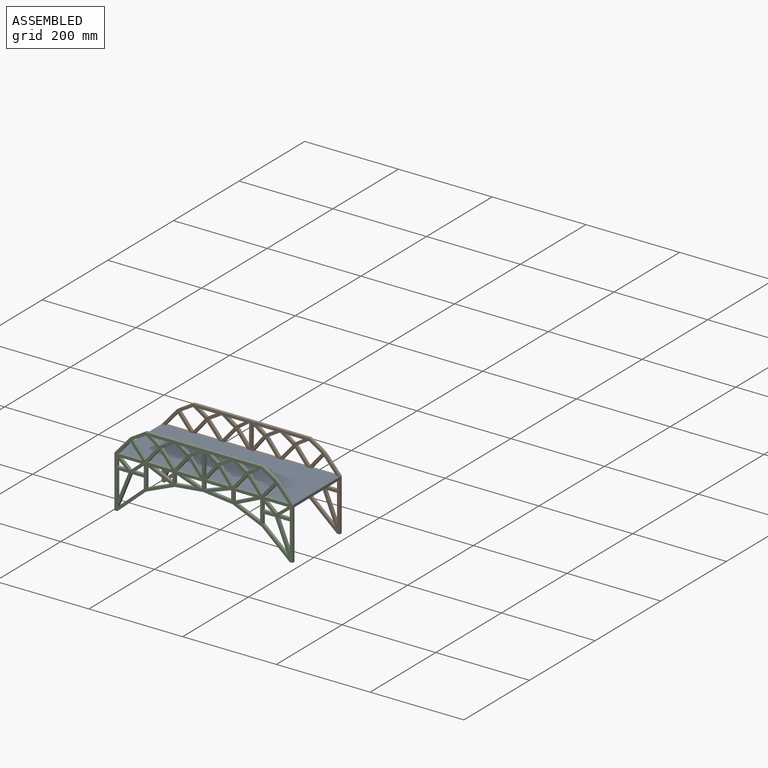
[diagram: assembled view]
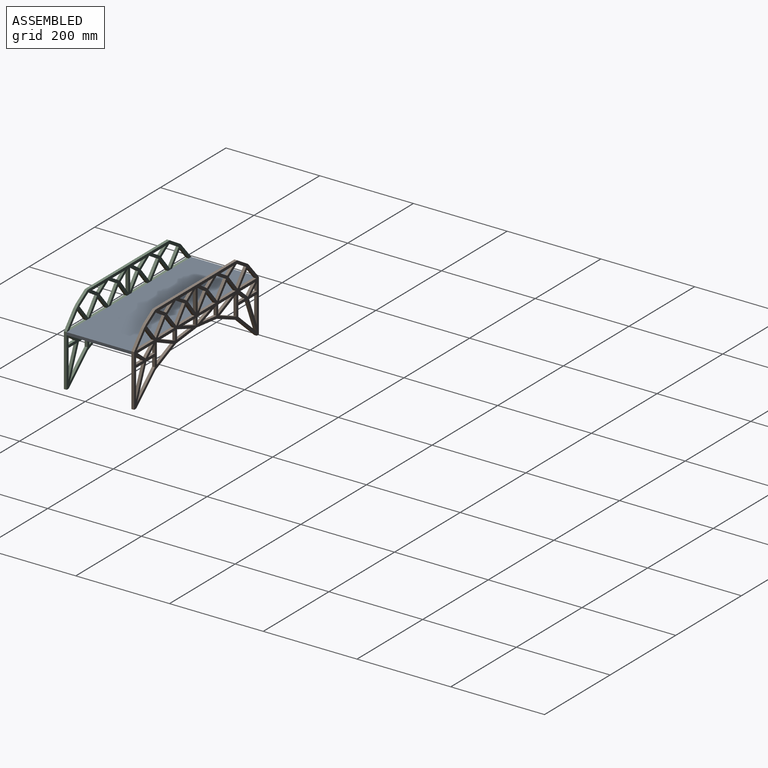
[diagram: assembled view, second angle]
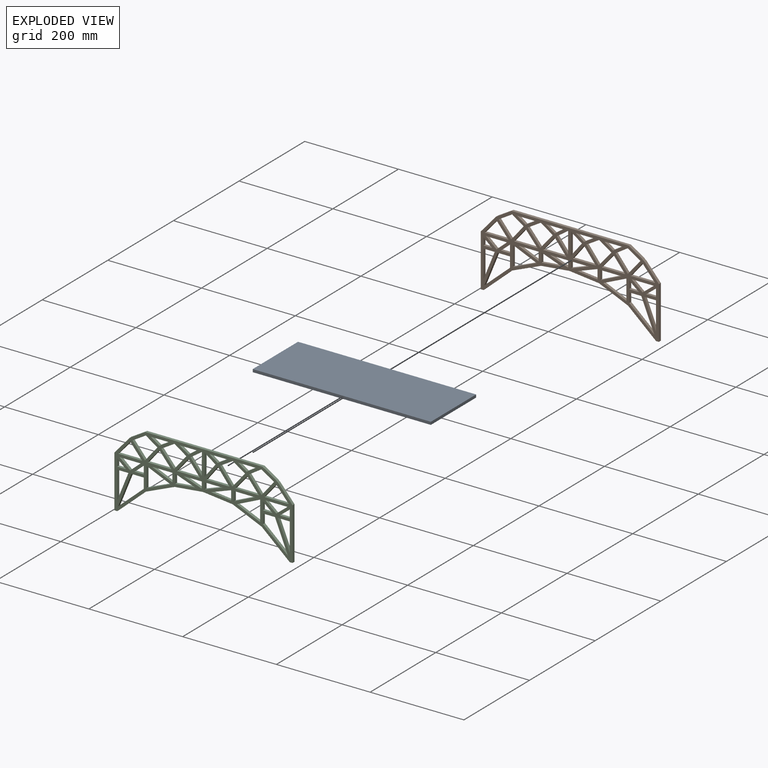
[diagram: exploded view]
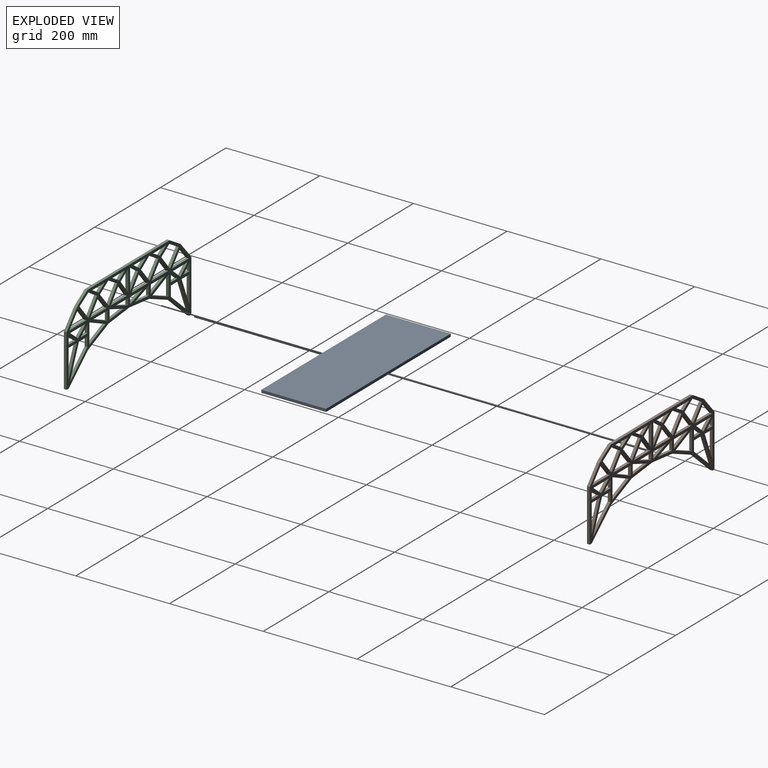
[diagram: exploded view, second angle]
ASSEMBLY  parts=3 mates=2
PART A: 6 faces, bbox 380x138x6 mm
  f0: plane 380x6mm, normal (0,1,0), area 2280mm2, adj f1,f3,f4,f5
  f1: plane 138x6mm, normal (-1,0,0), area 828mm2, adj f0,f2,f4,f5
  f2: plane 380x6mm, normal (0,-1,0), area 2280mm2, adj f1,f3,f4,f5
  f3: plane 138x6mm, normal (1,0,0), area 828mm2, adj f0,f2,f4,f5
  f4: plane 380x138mm, normal (0,0,1), area 52440mm2, adj f0,f1,f2,f3
  f5: plane 380x138mm, normal (0,0,-1), area 52440mm2, adj f0,f1,f2,f3
PART B: 129 faces, bbox 380x6x168.5 mm
  f0: plane 46.38x6mm, normal (-1,0,0.01), area 278.3mm2, adj f1,f126,f127,f128
  f1: plane 29.51x23.7mm, normal (0.78,0,0.63), area 227.1mm2, adj f0,f126,f127,f128
  f2: plane 24.64x16.47mm, normal (-0.56,0,-0.83), area 177.8mm2, adj f3,f92,f127,f128
  f3: plane 32.22x26.61mm, normal (-0.77,0,0.64), area 250.7mm2, adj f2,f4,f127,f128
  f4: plane 31.62x26.51mm, normal (0.77,0,0.64), area 247.6mm2, adj f3,f92,f127,f128
  f5: plane 6x1mm, normal (0,0,-1), area 6mm2, adj f6,f93,f127,f128
  f6: plane 26.64x16.65mm, normal (-0.53,0,-0.85), area 188.5mm2, adj f5,f7,f127,f128
  f7: plane 32.37x26.83mm, normal (-0.77,0,0.64), area 252.2mm2, adj f6,f8,f127,f128
  f8: plane 32.7x26.45mm, normal (0.78,0,0.63), area 252.3mm2, adj f7,f93,f127,f128
  f9: plane 38.4x6mm, normal (0,0,-1), area 230.4mm2, adj f10,f94,f127,f128
  f10: plane 19.59x12.47mm, normal (-0.54,0,0.84), area 139.3mm2, adj f9,f94,f127,f128
  f11: plane 26.05x17.27mm, normal (-0.55,0,-0.83), area 187.5mm2, adj f12,f95,f127,f128
  f12: plane 32.05x27.16mm, normal (-0.76,0,0.65), area 252.1mm2, adj f11,f13,f127,f128
  f13: plane 33.09x26.03mm, normal (0.79,0,0.62), area 252.6mm2, adj f12,f95,f127,f128
  f14: plane 38.11x6mm, normal (0,0,-1), area 228.7mm2, adj f15,f96,f127,f128
  f15: plane 20.74x12.41mm, normal (-0.51,0,0.86), area 145mm2, adj f14,f96,f127,f128
  f16: plane 23.2x16.57mm, normal (-0.58,0,-0.81), area 171.1mm2, adj f17,f97,f127,f128
  f17: plane 29.87x23.5mm, normal (-0.79,0,0.62), area 228.1mm2, adj f16,f97,f127,f128
  f18: plane 37.23x6mm, normal (0,0,-1), area 223.4mm2, adj f19,f98,f127,f128
  f19: plane 18.28x12.85mm, normal (-0.58,0,0.82), area 134.1mm2, adj f18,f98,f127,f128
  f20: plane 25.34x17.18mm, normal (-0.56,0,-0.83), area 183.7mm2, adj f21,f99,f127,f128
  f21: plane 31.48x26.3mm, normal (-0.77,0,0.64), area 246.1mm2, adj f20,f22,f127,f128
  f22: plane 31.84x27.02mm, normal (0.76,0,0.65), area 250.5mm2, adj f21,f99,f127,f128
  f23: plane 39.23x6mm, normal (0,0,-1), area 235.4mm2, adj f24,f100,f127,f128
  f24: plane 20.66x12.41mm, normal (-0.52,0,0.86), area 144.6mm2, adj f23,f100,f127,f128
  f25: plane 20.59x6mm, normal (0,0,1), area 123.6mm2, adj f26,f101,f127,f128
  f26: plane 17.08x6mm, normal (1,0,0), area 102.5mm2, adj f25,f101,f127,f128
  f27: plane 60.81x24.98mm, normal (0.93,0,0.38), area 394.5mm2, adj f28,f102,f127,f128
  f28: plane 24.98x6mm, normal (0,0,-1), area 149.9mm2, adj f27,f102,f127,f128
  f29: plane 21x16.86mm, normal (0.63,0,-0.78), area 161.6mm2, adj f30,f103,f127,f128
  f30: plane 16.86x6mm, normal (-1,0,0), area 101.2mm2, adj f29,f103,f127,f128
  f31: plane 49.46x21.36mm, normal (0.4,0,0.92), area 323.2mm2, adj f32,f104,f127,f128
  f32: plane 49.46x22mm, normal (0.41,0,-0.91), area 324.8mm2, adj f31,f104,f127,f128
  f33: plane 6x0.91mm, normal (0.4,0,0.92), area 6mm2, adj f34,f105,f127,f128
  f34: plane 20.85x6mm, normal (1,0,0), area 125.1mm2, adj f33,f35,f127,f128
  f35: plane 25.74x6mm, normal (0,0,-1), area 154.4mm2, adj f34,f36,f127,f128
  f36: plane 67.15x27.58mm, normal (-0.93,0,-0.38), area 435.6mm2, adj f35,f105,f127,f128
  f37: plane 18.42x15.81mm, normal (-0.65,0,-0.76), area 145.6mm2, adj f38,f106,f127,f128
  f38: plane 18.42x6mm, normal (0,0,1), area 110.5mm2, adj f37,f106,f127,f128
  f39: plane 50.85x21.16mm, normal (-0.38,0,0.92), area 330.5mm2, adj f40,f107,f127,f128
  f40: plane 42.93x6mm, normal (1,0,0), area 257.6mm2, adj f39,f107,f127,f128
  f41: plane 70.16x28.4mm, normal (0.93,0,-0.38), area 454.2mm2, adj f42,f108,f127,f128
  f42: plane 26.23x6mm, normal (0,0,-1), area 157.3mm2, adj f41,f43,f127,f128
  f43: plane 21.75x6mm, normal (-1,0,0), area 130.5mm2, adj f42,f108,f127,f128
  f44: plane 58.84x6mm, normal (1,0,0), area 353mm2, adj f45,f109,f127,f128
  f45: plane 23.81x6mm, normal (0,0,-1), area 142.9mm2, adj f44,f109,f127,f128
  f46: plane 19.75x6mm, normal (0,0,1), area 118.5mm2, adj f47,f110,f127,f128
  f47: plane 19.75x17.2mm, normal (0.66,0,-0.75), area 157.1mm2, adj f46,f110,f127,f128
  f48: plane 29.74x24.93mm, normal (-0.77,0,-0.64), area 232.9mm2, adj f49,f111,f127,f128
  f49: plane 51.02x6mm, normal (0,0,1), area 306.1mm2, adj f48,f111,f127,f128
  f50: plane 42.84x15.27mm, normal (0.34,0,-0.94), area 272.9mm2, adj f51,f112,f127,f128
  f51: plane 19.92x6mm, normal (-1,0,0), area 119.5mm2, adj f50,f112,f127,f128
  f52: plane 13.79x6mm, normal (1,0,0), area 82.7mm2, adj f53,f113,f127,f128
  f53: plane 38.67x6mm, normal (0,0,-1), area 232mm2, adj f52,f113,f127,f128
  f54: plane 38.47x13.77mm, normal (0.34,0,0.94), area 245.2mm2, adj f55,f114,f127,f128
  f55: plane 39.11x6mm, normal (0,0,-1), area 234.7mm2, adj f54,f56,f127,f128
  f56: plane 13.71x6mm, normal (-1,0,0), area 82.2mm2, adj f55,f114,f127,f128
  f57: plane 19.75x6mm, normal (1,0,0), area 118.5mm2, adj f58,f115,f127,f128
  f58: plane 42.54x15.23mm, normal (-0.34,0,-0.94), area 271.1mm2, adj f57,f115,f127,f128
  f59: plane 43.16x18.47mm, normal (0.39,0,0.92), area 281.7mm2, adj f60,f116,f127,f128
  f60: plane 43.16x6mm, normal (0,0,-1), area 259mm2, adj f59,f116,f127,f128
  f61: plane 22.68x19.47mm, normal (0.65,0,0.76), area 179.3mm2, adj f62,f117,f127,f128
  f62: plane 45.03x6mm, normal (0,0,-1), area 270.2mm2, adj f61,f117,f127,f128
  f63: plane 50.41x6mm, normal (0,0,1), area 302.5mm2, adj f64,f118,f127,f128
  f64: plane 30.1x24.87mm, normal (0.77,0,-0.64), area 234.3mm2, adj f63,f118,f127,f128
  f65: plane 49.39x6mm, normal (0,0,1), area 296.3mm2, adj f66,f119,f127,f128
  f66: plane 30.14x25.19mm, normal (0.77,0,-0.64), area 235.7mm2, adj f65,f119,f127,f128
  f67: plane 49.17x6mm, normal (0,0,1), area 295mm2, adj f68,f120,f127,f128
  f68: plane 31.29x24.56mm, normal (0.79,0,-0.62), area 238.6mm2, adj f67,f120,f127,f128
  f69: plane 50.04x6mm, normal (0,0,1), area 300.2mm2, adj f70,f121,f127,f128
  f70: plane 30.21x25.6mm, normal (0.76,0,-0.65), area 237.6mm2, adj f69,f121,f127,f128
  f71: plane 52.11x6mm, normal (0,0,1), area 312.7mm2, adj f72,f122,f127,f128
  f72: plane 30.67x25.42mm, normal (0.77,0,-0.64), area 239mm2, adj f71,f122,f127,f128
  f73: plane 44.86x6mm, normal (0,0,-1), area 269.2mm2, adj f74,f123,f127,f128
  f74: plane 44.86x19.96mm, normal (-0.41,0,0.91), area 294.6mm2, adj f73,f123,f127,f128
  f75: plane 6x6mm, normal (0,0,-1), area 36mm2, adj f76,f124,f127,f128
  f76: plane 111.32x6mm, normal (1,0,0), area 667.9mm2, adj f75,f77,f127,f128
  f77: plane 34.15x29.73mm, normal (0.75,0,0.66), area 271.7mm2, adj f76,f78,f127,f128
  f78: plane 6.3x6mm, normal (0.65,0,0.76), area 49.8mm2, adj f77,f79,f127,f128
  f79: plane 28.16x17.59mm, normal (0.53,0,0.85), area 199.2mm2, adj f78,f80,f127,f128
  f80: plane 249.92x6mm, normal (0,0,1), area 1499.5mm2, adj f79,f81,f127,f128
  f81: plane 33.26x19.94mm, normal (-0.51,0,0.86), area 232.7mm2, adj f80,f82,f127,f128
  f82: plane 37.21x32.63mm, normal (-0.75,0,0.66), area 296.9mm2, adj f81,f83,f127,f128
  f83: plane 111.32x6mm, normal (-1,0,0), area 667.9mm2, adj f82,f84,f127,f128
  f84: plane 6x6mm, normal (0,0,-1), area 36mm2, adj f83,f85,f127,f128
  f85: plane 60.47x53.59mm, normal (0.66,0,-0.75), area 484.8mm2, adj f84,f86,f127,f128
  f86: plane 62.12x25.85mm, normal (0.38,0,-0.92), area 403.7mm2, adj f85,f87,f127,f128
  f87: plane 60.5x6.42mm, normal (0.11,0,-0.99), area 365mm2, adj f86,f88,f127,f128
  f88: plane 63.22x6.86mm, normal (-0.11,0,-0.99), area 381.5mm2, adj f87,f89,f127,f128
  f89: plane 62.16x26.85mm, normal (-0.4,0,-0.92), area 406.3mm2, adj f88,f124,f127,f128
  f90: plane 23.3x19.33mm, normal (0.64,0,0.77), area 181.7mm2, adj f91,f125,f127,f128
  f91: plane 47.38x6mm, normal (0,0,-1), area 284.3mm2, adj f90,f125,f127,f128
  f92: plane 28.48x17.07mm, normal (0.51,0,-0.86), area 199.2mm2, adj f2,f4,f127,f128
  f93: plane 25.64x16.31mm, normal (0.54,0,-0.84), area 182.3mm2, adj f5,f8,f127,f128
  f94: plane 18.81x12.47mm, normal (0.55,0,0.83), area 135.4mm2, adj f9,f10,f127,f128
  f95: plane 27.14x16.23mm, normal (0.51,0,-0.86), area 189.7mm2, adj f11,f13,f127,f128
  f96: plane 17.37x12.41mm, normal (0.58,0,0.81), area 128.1mm2, adj f14,f15,f127,f128
  f97: plane 46.45x6mm, normal (1,0,-0.01), area 278.7mm2, adj f16,f17,f127,f128
  f98: plane 18.95x12.85mm, normal (0.56,0,0.83), area 137.4mm2, adj f18,f19,f127,f128
  f99: plane 27.99x16.82mm, normal (0.52,0,-0.86), area 195.9mm2, adj f20,f22,f127,f128
  f100: plane 18.57x12.41mm, normal (0.56,0,0.83), area 134mm2, adj f23,f24,f127,f128
  f101: plane 20.59x17.08mm, normal (-0.64,0,-0.77), area 160.5mm2, adj f25,f26,f127,f128
  f102: plane 60.81x6mm, normal (-1,0,0), area 364.9mm2, adj f27,f28,f127,f128
  f103: plane 21x6mm, normal (0,0,1), area 126mm2, adj f29,f30,f127,f128
  f104: plane 43.36x6mm, normal (-1,0,0), area 260.2mm2, adj f31,f32,f127,f128
  f105: plane 52.41x45.91mm, normal (0.66,0,0.75), area 418mm2, adj f33,f36,f127,f128
  f106: plane 15.81x6mm, normal (1,0,0), area 94.9mm2, adj f37,f38,f127,f128
  f107: plane 50.85x21.77mm, normal (-0.39,0,-0.92), area 331.9mm2, adj f39,f40,f127,f128
  f108: plane 54.62x48.41mm, normal (-0.66,0,0.75), area 437.9mm2, adj f41,f43,f127,f128
  f109: plane 58.84x23.81mm, normal (-0.93,0,0.38), area 380.8mm2, adj f44,f45,f127,f128
  f110: plane 17.2x6mm, normal (-1,0,0), area 103.2mm2, adj f46,f47,f127,f128
  f111: plane 29.74x26.09mm, normal (0.75,0,-0.66), area 237.4mm2, adj f48,f49,f127,f128
  f112: plane 42.84x6mm, normal (0.11,0,0.99), area 258.5mm2, adj f50,f51,f127,f128
  f113: plane 38.67x13.79mm, normal (-0.34,0,0.94), area 246.3mm2, adj f52,f53,f127,f128
  f114: plane 6x0.64mm, normal (-0.11,0,0.99), area 3.9mm2, adj f54,f56,f127,f128
  f115: plane 42.54x6mm, normal (-0.11,0,0.99), area 256.7mm2, adj f57,f58,f127,f128
  f116: plane 18.47x6mm, normal (-1,0,0), area 110.8mm2, adj f59,f60,f127,f128
  f117: plane 22.36x19.47mm, normal (-0.66,0,0.75), area 177.9mm2, adj f61,f62,f127,f128
  f118: plane 30.1x25.54mm, normal (-0.76,0,-0.65), area 236.9mm2, adj f63,f64,f127,f128
  f119: plane 30.14x24.2mm, normal (-0.78,0,-0.63), area 231.9mm2, adj f65,f66,f127,f128
  f120: plane 31.29x24.61mm, normal (-0.79,0,-0.62), area 238.8mm2, adj f67,f68,f127,f128
  f121: plane 30.21x24.44mm, normal (-0.78,0,-0.63), area 233.1mm2, adj f69,f70,f127,f128
  f122: plane 30.67x26.69mm, normal (-0.75,0,-0.66), area 243.9mm2, adj f71,f72,f127,f128
  f123: plane 19.96x6mm, normal (1,0,0), area 119.7mm2, adj f73,f74,f127,f128
  f124: plane 59.53x52.15mm, normal (-0.66,0,-0.75), area 474.9mm2, adj f75,f89,f127,f128
  f125: plane 24.08x19.33mm, normal (-0.63,0,0.78), area 185.2mm2, adj f90,f91,f127,f128
  f126: plane 24x16.87mm, normal (0.58,0,-0.82), area 176mm2, adj f0,f1,f127,f128
  f127: plane 380x168.46mm, normal (0,-1,0), area 17067.5mm2, adj f0,f1,f2,f3,f4,f5,f6,f7
  f128: plane 380x168.46mm, normal (0,1,0), area 17067.5mm2, adj f0,f1,f2,f3,f4,f5,f6,f7
PART C: same geometry as B
PLACE A t=(-56.04,64.07,-4.08)mm
PLACE B t=(-31.36,98.01,-44.43)mm
PLACE C t=(-31.36,-45.99,-44.43)mm
MATE fastened B.f127 <-> A.f0  axis (0,-1,0) through (190.8,92.01,1.92)mm
MATE fastened A.f2 <-> C.f128  axis (0,-1,0) through (190.8,-45.99,1.92)mm
